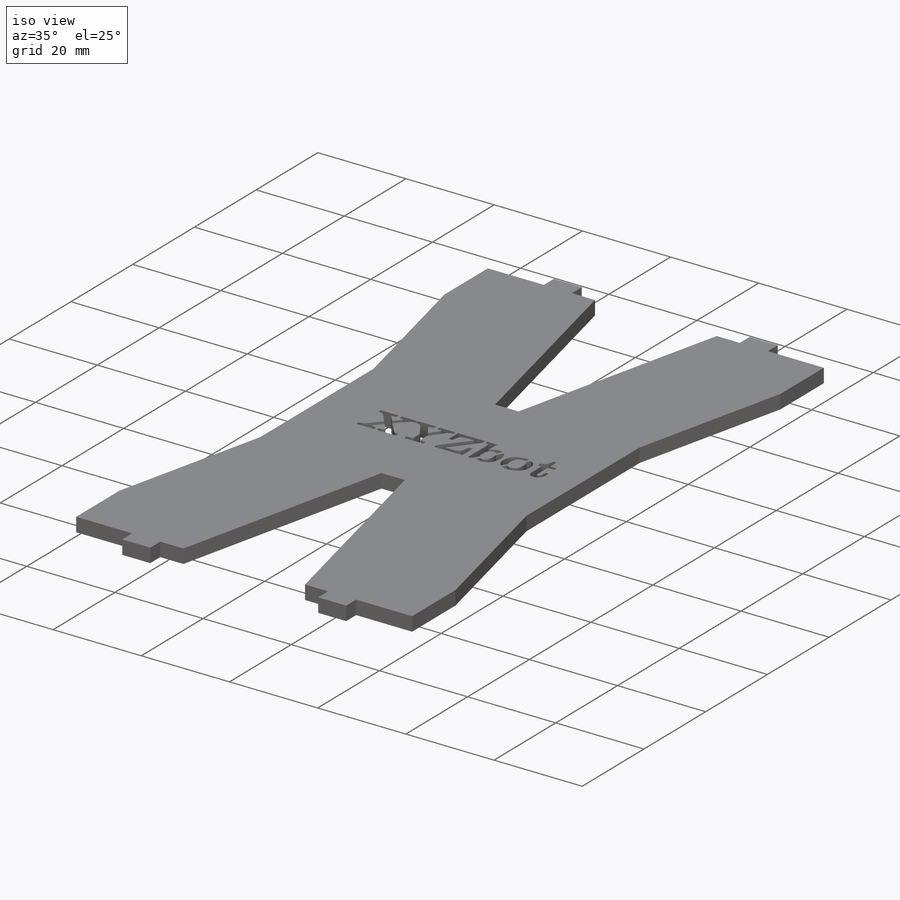
[diagram: iso view]
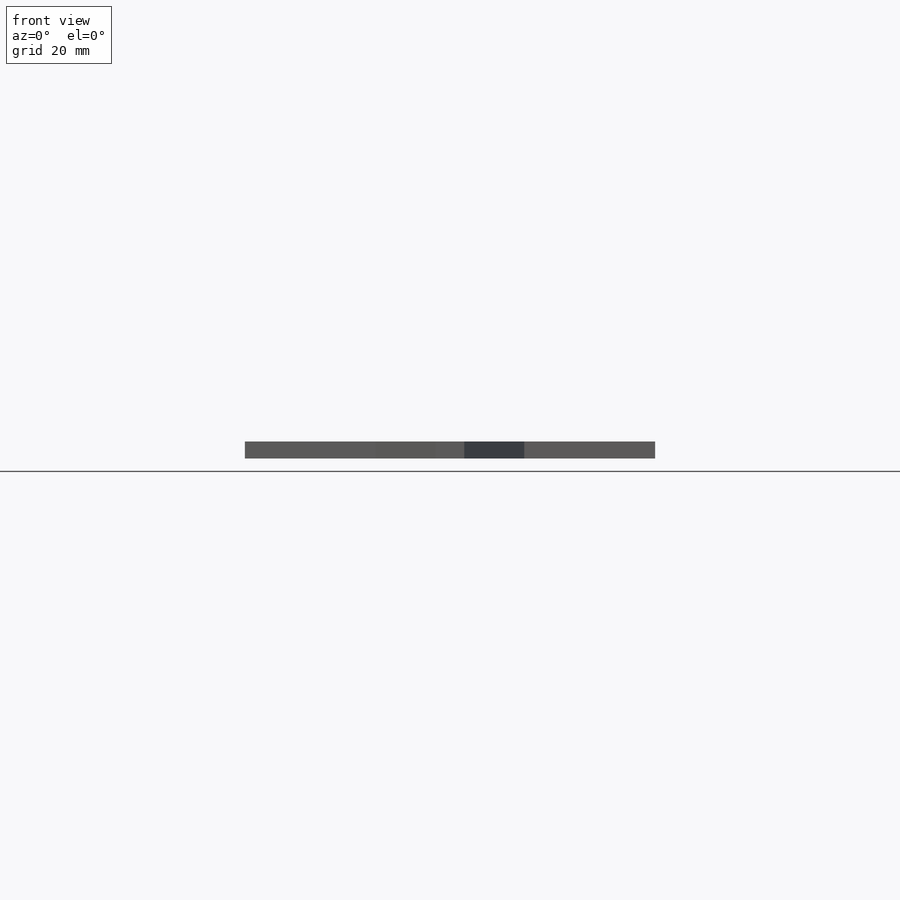
[diagram: front view]
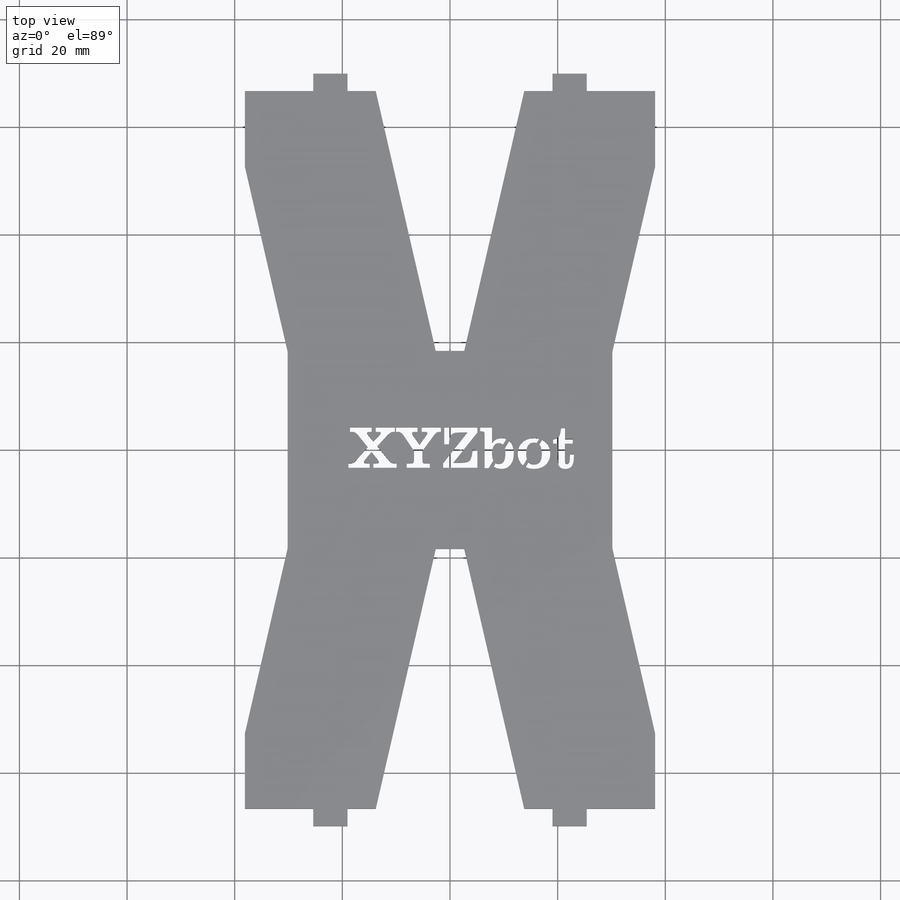
[diagram: top view]
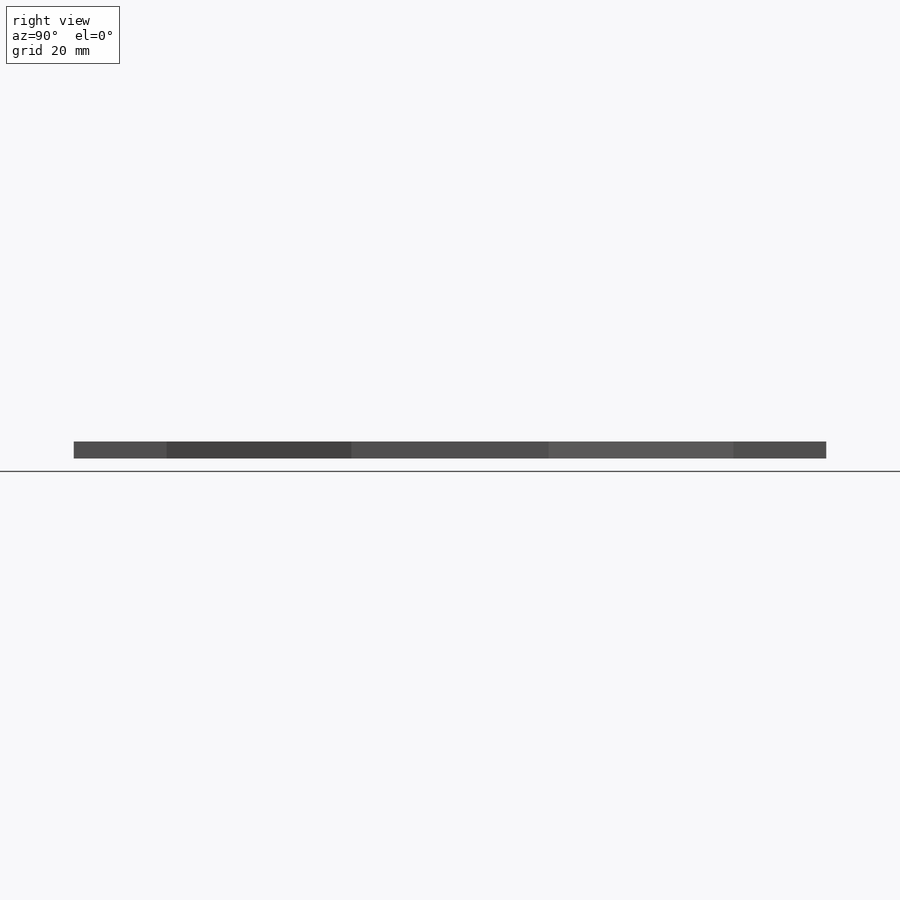
[diagram: right view]
SOLIDWORKS PART (.sldprt)
format: sldprt  version: not decoded by parser v0  size: 567,808 bytes
history: native  units: mm
features: sketch x5, extrude x3, mirror x3, cut_extrude x2, material x1 (+16 scaffold rows collapsed)
feature tree (30):
  scaffold x16  (default folders/planes/origin — collapsed)
  material  "Material <not specified>"
  sketch  "Sketch1"  dims[c1.D1=22.225mm c1.D2=66.675mm c1.D3=3.175mm c1.D4=3.2258mm c1.D5=5.08mm c1.D6=5.08mm c1.D7=6.35mm c2.D1=133.35mm c2.D2=76.2mm]
  extrude  "Boss-Extrude1"  Depth=3.175mm
  sketch  "Sketch2"  dims[c1.D1=3.2258mm c1.D2=6.35mm c1.D3=19.05mm c1.D4=76.2mm c2.D4=90.0deg c3.D4=3.2258mm c3.D5=6.35mm c3.D6=19.05mm]
  extrude  "Boss-Extrude2"  Depth=3.175mm
  mirror  "Mirror3"
  sketch  "Sketch4"
  cut_extrude  "Cut-Extrude1"  [1 undecoded]
  sketch  "Sketch5"  dims[D1=0.635mm D2=0.635mm]
  extrude  "Boss-Extrude4"  Depth=3.175mm
  sketch  "Sketch6"  dims[c1.D1=~13.797705mm c2.D1=77.0deg]
  cut_extrude  "Cut-Extrude2"  [1 undecoded]
  mirror  "Mirror4"
  mirror  "Mirror5"
decode coverage: 7 of 13 modeling features carry decoded parameters
note: ~ marks probable driven/reference dimensions
note: 2 parameter values undecoded
note: suppression state not decoded; provenance and decode notes live in map.json
